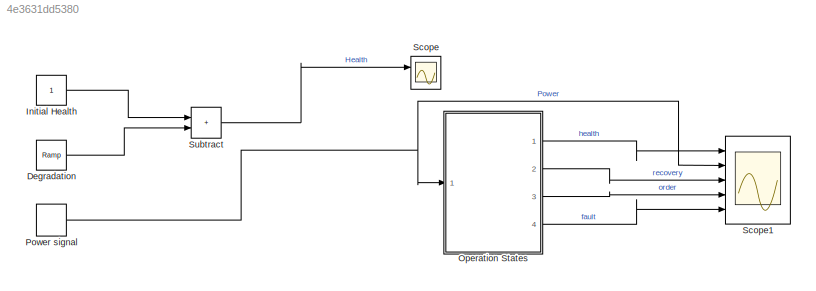
MODEL slx_4e3631dd5380
KIND model
CONFIG AbsTol = auto
CONFIG EnableMultiTasking = off
CONFIG FixedStep = auto
CONFIG MaxStep = auto
CONFIG MinStep = auto
CONFIG RelTol = 1e-3
CONFIG SampleTimeConstraint = Unconstrained
CONFIG SolverName = VariableStepAuto
CONFIG StartTime = 0.0
CONFIG StopTime = 30.0
BLOCK [Reference] Degradation  REF=simulink/Sources/Ramp
  Commented = on
  Ports = [0, 1]
  SourceBlock = simulink/Sources/Ramp
  SourceProductBaseCode = SL
  SourceType = Ramp
BLOCK [Constant] Initial Health
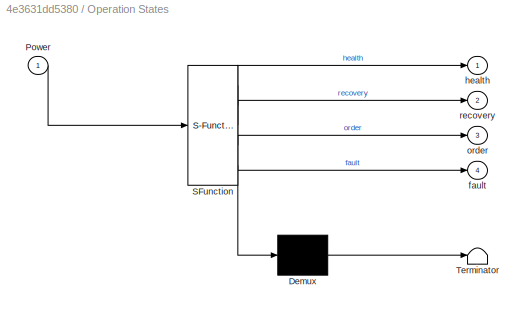
BLOCK [SubSystem] Operation States
  ErrorFcn = Stateflow.Translate.translate
  PermitHierarchicalResolution = ExplicitOnly
  Ports = [1, 4]
  RequestExecContextInheritance = off
  SFBlockType = Chart
  TreatAsAtomicUnit = on
BLOCK [Demux] Operation States/ Demux 
  Outputs = 1
  Ports = [1, 1]
BLOCK [S-Function] Operation States/ SFunction 
  EnableBusSupport = on
  FunctionName = sf_sfun
  PortCounts = [1 5]
  Ports = [1, 5]
  SFcnIsStateOwnerBlock = off
  SFunctionDeploymentMode = off
  Tag = Stateflow S-Function 3
BLOCK [Terminator] Operation States/ Terminator 
BLOCK [Inport] Operation States/Power
BLOCK [Outport] Operation States/fault
  Port = 4
BLOCK [Outport] Operation States/health
BLOCK [Outport] Operation States/order
  Port = 3
BLOCK [Outport] Operation States/recovery
  Port = 2
BLOCK [DiscretePulseGenerator] Power signal
  Period = 10
  Ports = [0, 1]
  PulseType = Time based
  PulseWidth = 50
BLOCK [Scope] Scope
  Floating = off
  NumInputPorts = 2
  Ports = [2]
  ScopeSpecificationString = Simulink.scopes.TimeScopeBlockCfg('CurrentConfiguration', extmgr.ConfigurationSet(extmgr.Configuration('Core','General UI',true),extmgr.Configuration('Core','Source UI',true),extmgr.Configuration('Sources','WiredSimulink',true),extmgr.Configuration('Visuals','Time Domain',true,'SerializedDisplays',{struct('MinYLimReal','-0.0575','MaxYLimReal','1.1175','YLabelReal','','MinYLimMag','0.00000','MaxYLi...<+1320ch>
BLOCK [Scope] Scope1
  Floating = off
  NumInputPorts = 5
  Ports = [5]
  ScopeSpecificationString = Simulink.scopes.TimeScopeBlockCfg('CurrentConfiguration', extmgr.ConfigurationSet(extmgr.Configuration('Core','General UI',true),extmgr.Configuration('Core','Source UI',true),extmgr.Configuration('Sources','WiredSimulink',true,'DataLoggingVariableName','ScopeData1'),extmgr.Configuration('Visuals','Time Domain',true,'SerializedDisplays',{struct('MinYLimReal','0.64','MaxYLimReal','1.04','YLabelReal'...<+2169ch>
BLOCK [Sum] Subtract
  IconShape = rectangular
  Ports = [2, 1]
LINE Degradation:1 -> Subtract:2
LINE Initial Health:1 -> Subtract:1
LINE Operation States:1 -> Scope1:1
LINE Operation States:2 -> Scope1:3
LINE Operation States:3 -> Scope1:4
LINE Operation States:4 -> Scope1:5
NET Power signal:1 -> Operation States:1, Scope1:2
LINE Subtract:1 -> Scope:1
note: NET lines group one-source signal fan-out (src -> all destinations, sorted); 1:1 wires keep LINE
CHART Operation States states=20 transitions=17
  STATE_LABEL 'Inspection'
  STATE_LABEL 'Maintenance'
  STATE_LABEL 'On\nduring:\nhealth = health - 0.02;\nuseTime = useTime + 1;'
  STATE_LABEL 'Normal\n'
  STATE_LABEL 'Recovery\nentry:\nrecovery = 1;\ncounter = 0;\nduring:\ncounter = counter +1;\nexit:\nrecovery = 0;\nhealth = 1;'
  STATE_LABEL 'Maintenance'
  STATE_LABEL 'AsIs'
  STATE_LABEL 'Repair'
  STATE_LABEL 'Replacement'
  STATE_LABEL 'AsIs'
  STATE_LABEL 'Repair'
  STATE_LABEL 'Replacement'
  STATE_LABEL 'Off'
  STATE_LABEL 'UseTimeMaintenance\n\nentry:\nhealth'
  STATE_LABEL 'Fault\nentry:\nfault = 1;\nexit:\nfault = 0;'
  STATE_LABEL 'Order\nentry:\norder = 1;\ncounter = 0;\nduring:\ncounter = counter +1;\nexit:\norder = 0;\nhealth = 1;'
  STATE_LABEL 'CalendarMaintenance\n\n'
  STATE_LABEL 'Need Global Variable "calendarTime"'
  STATE_LABEL 'Diagnosis'
  STATE_LABEL 'Inventory'
  STATE_LABEL 'PredictiveMaintenance\n\n'
  STATE_LABEL 'Each maintenance states has its own decision model'
  STATE_LABEL 'Need checkInventory() method'
CHART  states=0 transitions=0
